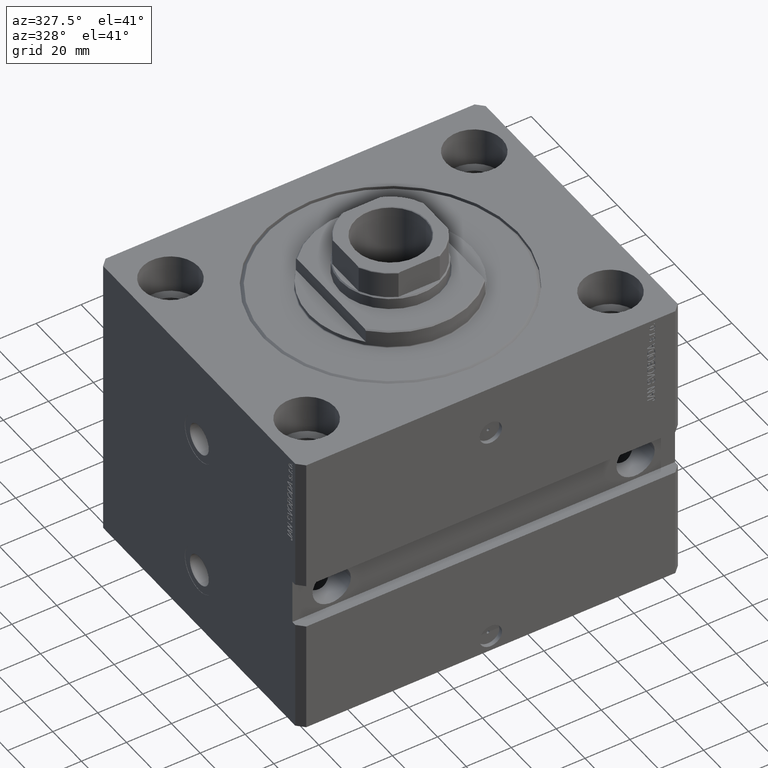
[diagram: clean part render]
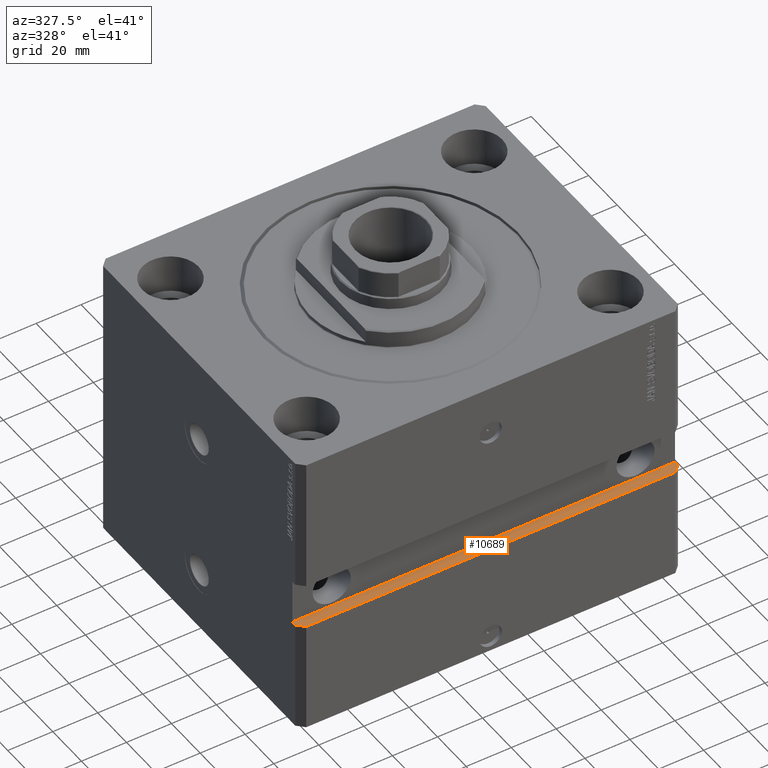
[diagram: same view with one face highlighted and labeled with its STEP entity id]
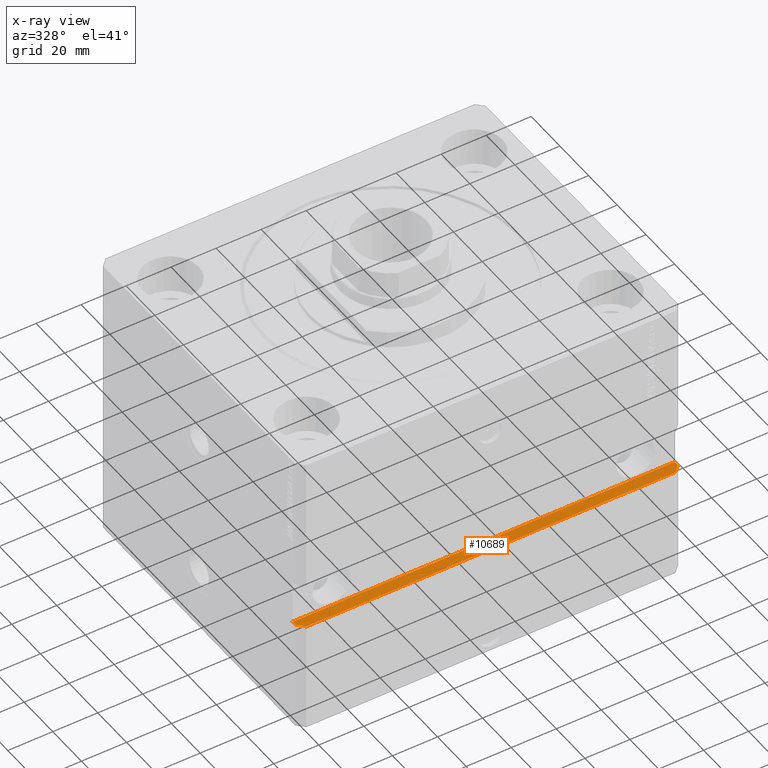
[diagram: x-ray of the same camera — body ghosted, the highlighted face saturated]
A machine part, auxiliary view. The second image highlights one B-rep face of the part: STEP entity #10689.
The next image is the same camera in x-ray: the body ghosted, the highlighted face saturated — about 0% of this face is hidden behind the body in this view.
In plain terms, the highlighted planar face has unit normal (0, 0, -1).
Its self-contained STEP definition (entity closure, byte-faithful):
#45 = VECTOR ( 'NONE', #3950, 1000.000000000000114 ) ;
#280 = EDGE_CURVE ( 'NONE', #47215, #5824, #27491, .T. ) ;
#3950 = DIRECTION ( 'NONE',  ( 0.7071067811865474617, -0.7071067811865474617, 0.000000000000000000 ) ) ;
#4059 = ORIENTED_EDGE ( 'NONE', *, *, #280, .F. ) ;
#4532 = EDGE_CURVE ( 'NONE', #37545, #41098, #29162, .T. ) ;
#4751 = VECTOR ( 'NONE', #42678, 1000.000000000000000 ) ;
#4982 = LINE ( 'NONE', #42452, #35890 ) ;
#5824 = VERTEX_POINT ( 'NONE', #47216 ) ;
#7377 = CARTESIAN_POINT ( 'NONE',  ( -85.00000000000001421, -67.00000000000000000, -80.00000000000001421 ) ) ;
#7986 = CARTESIAN_POINT ( 'NONE',  ( -85.00000000000001421, -70.00000000000001421, -80.00000000000001421 ) ) ;
#8218 = EDGE_CURVE ( 'NONE', #44662, #38818, #23768, .T. ) ;
#8992 = PLANE ( 'NONE',  #44214 ) ;
#9283 = CARTESIAN_POINT ( 'NONE',  ( -85.00000000000001421, -65.00000000000001421, -80.00000000000001421 ) ) ;
#10585 = CARTESIAN_POINT ( 'NONE',  ( -82.00000000000000000, -70.00000000000001421, -80.00000000000001421 ) ) ;
#10689 = ADVANCED_FACE ( 'NONE', ( #27590 ), #8992, .F. ) ;
#15942 = CARTESIAN_POINT ( 'NONE',  ( 82.00000000000001421, -70.00000000000000000, -80.00000000000001421 ) ) ;
#16711 = CARTESIAN_POINT ( 'NONE',  ( -85.00000000000001421, -65.00000000000001421, -80.00000000000001421 ) ) ;
#19913 = DIRECTION ( 'NONE',  ( 1.176083712526788232E-16, -1.000000000000000000, -0.000000000000000000 ) ) ;
#20023 = EDGE_CURVE ( 'NONE', #41098, #44662, #26571, .T. ) ;
#21546 = CARTESIAN_POINT ( 'NONE',  ( 82.00000000000001421, -69.99999999999998579, -80.00000000000001421 ) ) ;
#22903 = DIRECTION ( 'NONE',  ( 1.000000000000000000, 1.632680918566406300E-16, 0.000000000000000000 ) ) ;
#23768 = LINE ( 'NONE', #15942, #25328 ) ;
#24113 = EDGE_CURVE ( 'NONE', #5824, #38818, #4982, .T. ) ;
#25328 = VECTOR ( 'NONE', #45825, 1000.000000000000000 ) ;
#26571 = LINE ( 'NONE', #7986, #38864 ) ;
#27350 = DIRECTION ( 'NONE',  ( -1.000000000000000000, 0.000000000000000000, -0.000000000000000000 ) ) ;
#27491 = LINE ( 'NONE', #16711, #4751 ) ;
#27590 = FACE_OUTER_BOUND ( 'NONE', #36210, .T. ) ;
#29162 = LINE ( 'NONE', #7377, #45 ) ;
#31256 = CARTESIAN_POINT ( 'NONE',  ( -85.00000000000001421, -65.00000000000001421, -80.00000000000001421 ) ) ;
#32635 = CARTESIAN_POINT ( 'NONE',  ( -85.00000000000001421, -67.00000000000000000, -80.00000000000001421 ) ) ;
#35188 = ORIENTED_EDGE ( 'NONE', *, *, #44822, .T. ) ;
#35685 = DIRECTION ( 'NONE',  ( 1.176083712526788232E-16, -1.000000000000000000, -0.000000000000000000 ) ) ;
#35890 = VECTOR ( 'NONE', #19913, 1000.000000000000000 ) ;
#36210 = EDGE_LOOP ( 'NONE', ( #39834, #43910, #4059, #35188, #46925, #44026 ) ) ;
#36324 = DIRECTION ( 'NONE',  ( 0.000000000000000000, 0.000000000000000000, -1.000000000000000000 ) ) ;
#37545 = VERTEX_POINT ( 'NONE', #32635 ) ;
#38818 = VERTEX_POINT ( 'NONE', #45809 ) ;
#38864 = VECTOR ( 'NONE', #22903, 1000.000000000000000 ) ;
#39834 = ORIENTED_EDGE ( 'NONE', *, *, #8218, .T. ) ;
#41098 = VERTEX_POINT ( 'NONE', #10585 ) ;
#42452 = CARTESIAN_POINT ( 'NONE',  ( 85.00000000000001421, -64.99999999999998579, -80.00000000000001421 ) ) ;
#42678 = DIRECTION ( 'NONE',  ( 1.000000000000000000, 1.632680918566406300E-16, 0.000000000000000000 ) ) ;
#43540 = LINE ( 'NONE', #46741, #43781 ) ;
#43781 = VECTOR ( 'NONE', #35685, 1000.000000000000000 ) ;
#43910 = ORIENTED_EDGE ( 'NONE', *, *, #24113, .F. ) ;
#44026 = ORIENTED_EDGE ( 'NONE', *, *, #20023, .T. ) ;
#44214 = AXIS2_PLACEMENT_3D ( 'NONE', #31256, #36324, #27350 ) ;
#44662 = VERTEX_POINT ( 'NONE', #21546 ) ;
#44822 = EDGE_CURVE ( 'NONE', #47215, #37545, #43540, .T. ) ;
#45809 = CARTESIAN_POINT ( 'NONE',  ( 85.00000000000001421, -66.99999999999998579, -80.00000000000001421 ) ) ;
#45825 = DIRECTION ( 'NONE',  ( 0.7071067811865459074, 0.7071067811865491270, 0.000000000000000000 ) ) ;
#46741 = CARTESIAN_POINT ( 'NONE',  ( -85.00000000000001421, -65.00000000000001421, -80.00000000000001421 ) ) ;
#46925 = ORIENTED_EDGE ( 'NONE', *, *, #4532, .T. ) ;
#47215 = VERTEX_POINT ( 'NONE', #9283 ) ;
#47216 = CARTESIAN_POINT ( 'NONE',  ( 85.00000000000001421, -64.99999999999998579, -80.00000000000001421 ) ) ;